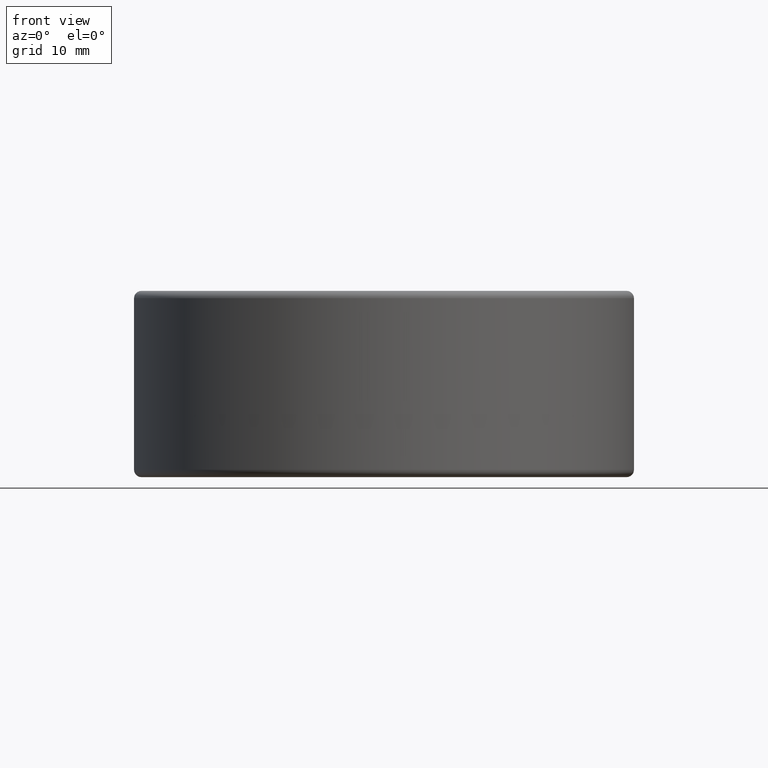
[diagram: clean part render]
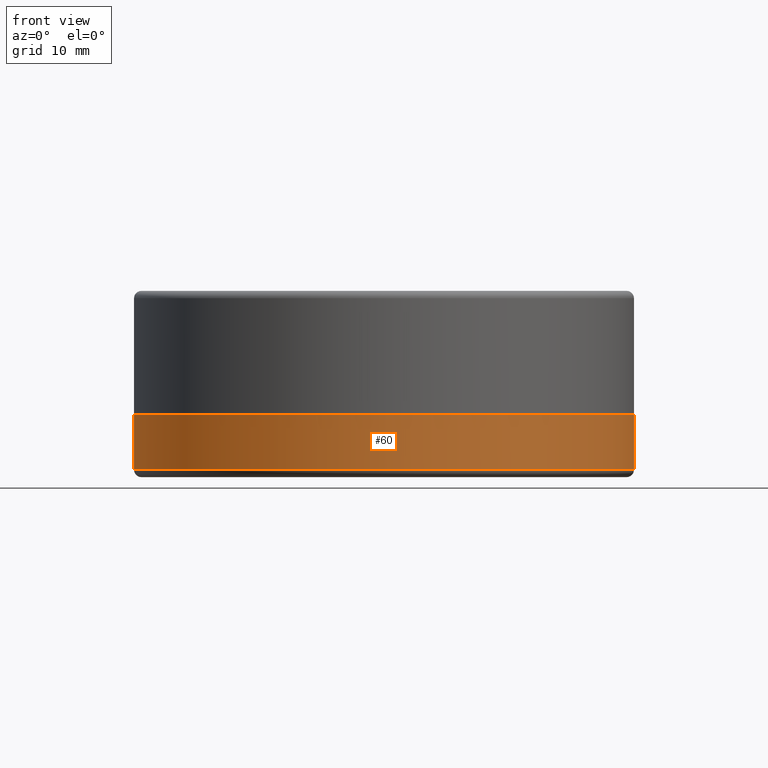
[diagram: same view with one face highlighted and labeled with its STEP entity id]
A machine part, front view. The second image highlights one B-rep face of the part: STEP entity #60.
In plain terms, the highlighted cylindrical surface (partial cylindrical patch) has radius 25.5 mm, axis along (0, 0, 1).
Its self-contained STEP definition (entity closure, byte-faithful):
#60 = ADVANCED_FACE ( 'NONE', ( #2219 ), #2130, .T. ) ;
#77 = VECTOR ( 'NONE', #1565, 1000.000000000000000 ) ;
#89 = EDGE_CURVE ( 'NONE', #147, #2105, #1059, .T. ) ;
#147 = VERTEX_POINT ( 'NONE', #2538 ) ;
#222 = EDGE_CURVE ( 'NONE', #147, #2200, #1922, .T. ) ;
#292 = ORIENTED_EDGE ( 'NONE', *, *, #1574, .T. ) ;
#379 = DIRECTION ( 'NONE',  ( 0.0000000000000000000, 0.0000000000000000000, 1.000000000000000000 ) ) ;
#466 = CARTESIAN_POINT ( 'NONE',  ( 0.0000000000000000000, 0.0000000000000000000, -8.749999999999998200 ) ) ;
#470 = VECTOR ( 'NONE', #2115, 1000.000000000000000 ) ;
#514 = AXIS2_PLACEMENT_3D ( 'NONE', #1463, #379, #1475 ) ;
#519 = ORIENTED_EDGE ( 'NONE', *, *, #764, .F. ) ;
#764 = EDGE_CURVE ( 'NONE', #2105, #2426, #1556, .T. ) ;
#829 = ORIENTED_EDGE ( 'NONE', *, *, #89, .F. ) ;
#874 = EDGE_LOOP ( 'NONE', ( #829, #1496, #292, #519 ) ) ;
#980 = AXIS2_PLACEMENT_3D ( 'NONE', #2447, #1808, #2659 ) ;
#993 = LINE ( 'NONE', #2003, #77 ) ;
#1059 = LINE ( 'NONE', #1872, #470 ) ;
#1463 = CARTESIAN_POINT ( 'NONE',  ( 0.0000000000000000000, 0.0000000000000000000, -9.500000000000000000 ) ) ;
#1475 = DIRECTION ( 'NONE',  ( 1.000000000000000000, 0.0000000000000000000, 0.0000000000000000000 ) ) ;
#1496 = ORIENTED_EDGE ( 'NONE', *, *, #222, .T. ) ;
#1526 = DIRECTION ( 'NONE',  ( 0.0000000000000000000, 0.0000000000000000000, 1.000000000000000000 ) ) ;
#1556 = CIRCLE ( 'NONE', #980, 25.50000000000000000 ) ;
#1565 = DIRECTION ( 'NONE',  ( 0.0000000000000000000, 0.0000000000000000000, 1.000000000000000000 ) ) ;
#1574 = EDGE_CURVE ( 'NONE', #2200, #2426, #993, .T. ) ;
#1808 = DIRECTION ( 'NONE',  ( 0.0000000000000000000, 0.0000000000000000000, 1.000000000000000000 ) ) ;
#1872 = CARTESIAN_POINT ( 'NONE',  ( -25.50000000000000000, 3.122849337825750200E-015, -9.500000000000000000 ) ) ;
#1922 = CIRCLE ( 'NONE', #2189, 25.50000000000000000 ) ;
#2003 = CARTESIAN_POINT ( 'NONE',  ( 25.50000000000000000, 0.0000000000000000000, -9.500000000000000000 ) ) ;
#2044 = CARTESIAN_POINT ( 'NONE',  ( 25.50000000000000000, 0.0000000000000000000, -8.749999999999998200 ) ) ;
#2060 = CARTESIAN_POINT ( 'NONE',  ( 25.50000000000000000, 0.0000000000000000000, -3.125000000000000900 ) ) ;
#2105 = VERTEX_POINT ( 'NONE', #2626 ) ;
#2115 = DIRECTION ( 'NONE',  ( 0.0000000000000000000, 0.0000000000000000000, 1.000000000000000000 ) ) ;
#2130 = CYLINDRICAL_SURFACE ( 'NONE', #514, 25.50000000000000000 ) ;
#2189 = AXIS2_PLACEMENT_3D ( 'NONE', #466, #1526, #2591 ) ;
#2200 = VERTEX_POINT ( 'NONE', #2044 ) ;
#2219 = FACE_OUTER_BOUND ( 'NONE', #874, .T. ) ;
#2426 = VERTEX_POINT ( 'NONE', #2060 ) ;
#2447 = CARTESIAN_POINT ( 'NONE',  ( 0.0000000000000000000, 0.0000000000000000000, -3.125000000000000900 ) ) ;
#2538 = CARTESIAN_POINT ( 'NONE',  ( -25.50000000000000000, 3.122849337825750200E-015, -8.749999999999998200 ) ) ;
#2591 = DIRECTION ( 'NONE',  ( 1.000000000000000000, 0.0000000000000000000, 0.0000000000000000000 ) ) ;
#2626 = CARTESIAN_POINT ( 'NONE',  ( -25.50000000000000000, 3.122849337825750200E-015, -3.125000000000000900 ) ) ;
#2659 = DIRECTION ( 'NONE',  ( 1.000000000000000000, 0.0000000000000000000, 0.0000000000000000000 ) ) ;